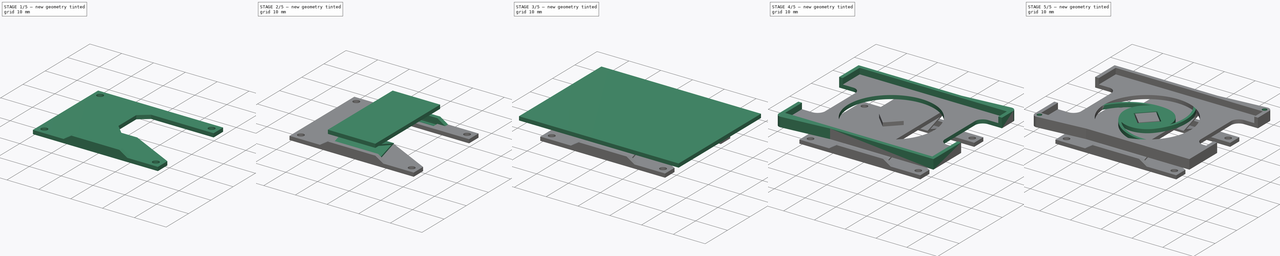
[diagram: build sequence overview — one tinted view per stage of 5, left to right]
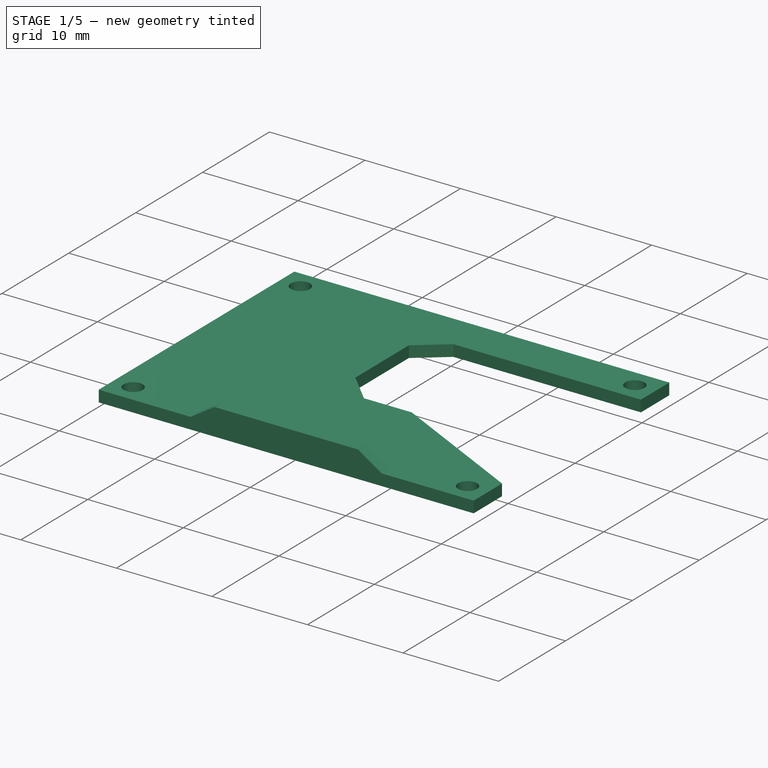
[diagram: stage 1 of 5 — iso view after this stage's code; geometry added in this stage tinted green]
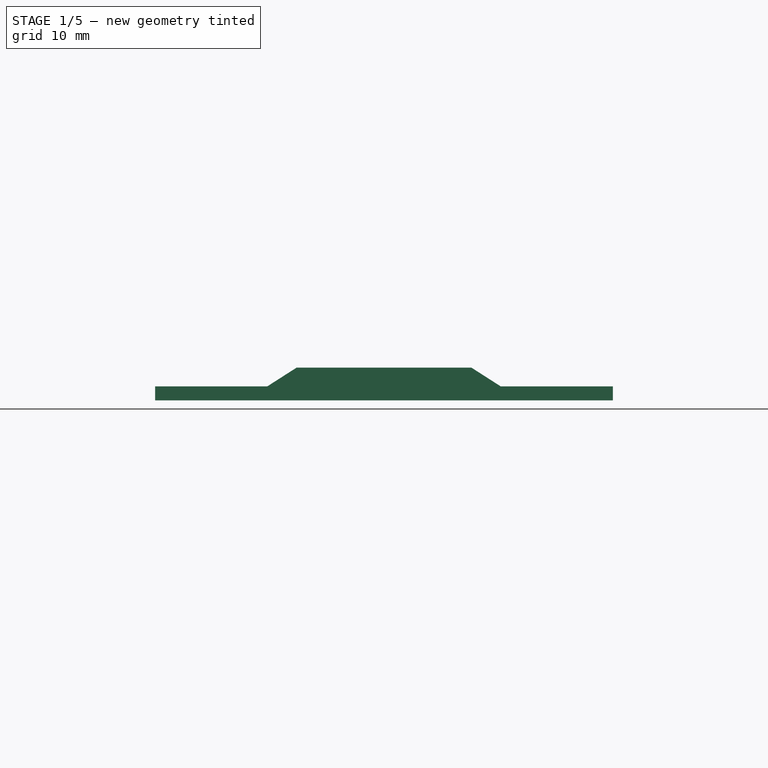
[diagram: stage 1 of 5 — front view after this stage's code; geometry added in this stage tinted green]
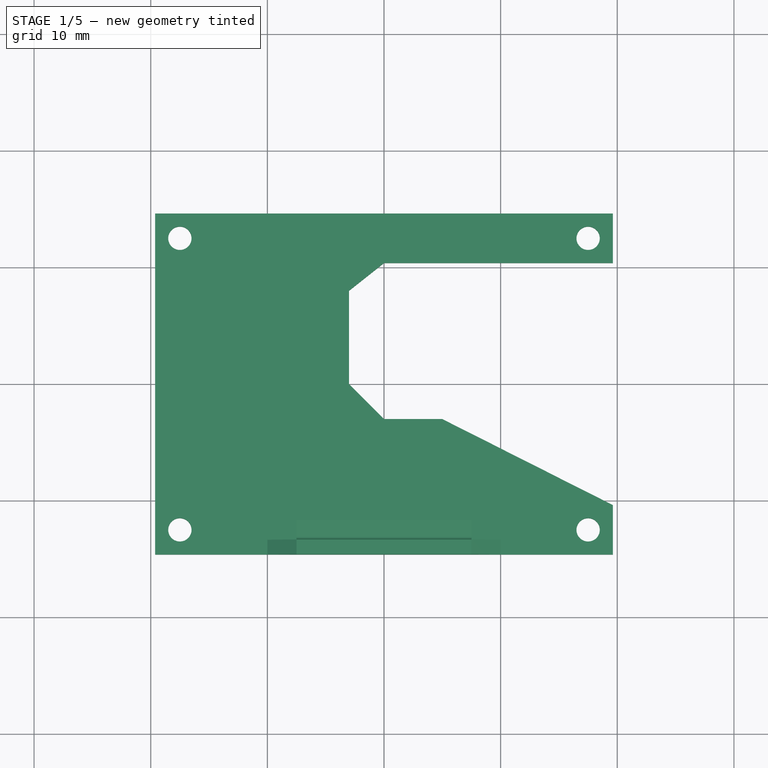
[diagram: stage 1 of 5 — top view after this stage's code; geometry added in this stage tinted green]
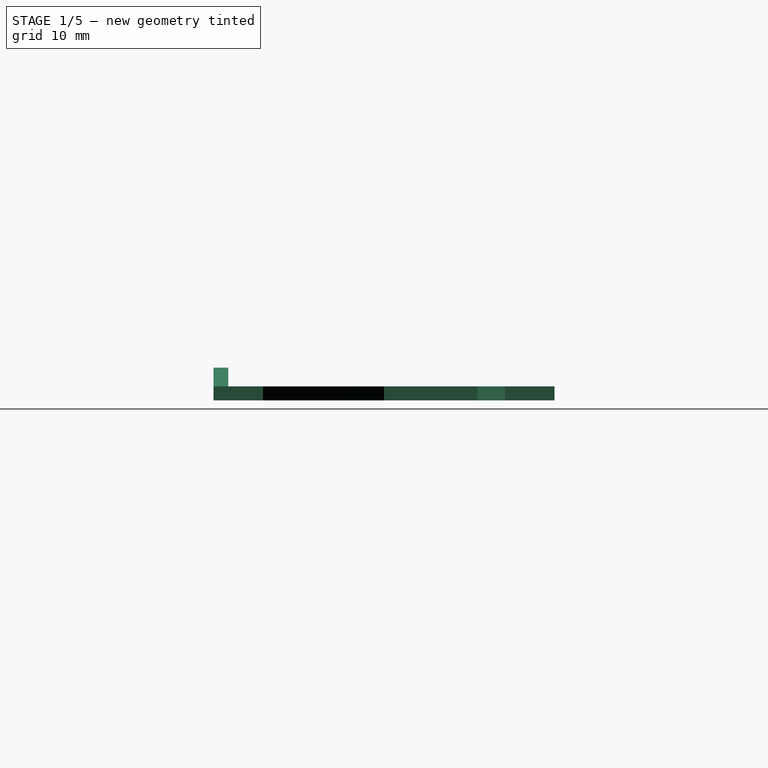
[diagram: stage 1 of 5 — right view after this stage's code; geometry added in this stage tinted green]
FCSTD DOCUMENT  (FreeCAD 0.21R33668 +26 (Git))
Label: PLASTIC-TEK1-DISPLAY-INTERFACE
License: All rights reserved
LicenseURL: https://en.wikipedia.org/wiki/All_rights_reserved
objects: Sketcher::SketchObject×15, PartDesign::Pad×8, PartDesign::Pocket×5, PartDesign::Plane×4, PartDesign::Body×3, PartDesign::Mirrored×2
note: 50 computed .brp shape members not serialized (recipe doc carries the construction recipe); baked Part::Feature solids carry a one-line shape summary decoded from their .brp

FEATURE [Sketcher::SketchObject] Sketch003
  FullyConstrained = true
  MapMode = 5
  Support = -> [XY_Plane]
  sketch-geometry (24):
    g0: Circle CenterX=-17.5 CenterY=12.5 CenterZ=0 NormalX=0 NormalY=0 NormalZ=1 AngleXU=0 Radius=1
    g1: Circle CenterX=-17.5 CenterY=-12.5 CenterZ=0 NormalX=0 NormalY=0 NormalZ=1 AngleXU=0 Radius=1
    g2: Circle CenterX=17.5 CenterY=-12.5 CenterZ=0 NormalX=0 NormalY=0 NormalZ=1 AngleXU=0 Radius=1
    g3: LineSegment StartX=-19.6213 StartY=14.6213 StartZ=0 EndX=-15.3787 EndY=14.6213 EndZ=0
    g4: LineSegment StartX=-19.6213 StartY=-14.6213 StartZ=0 EndX=19.6213 EndY=-14.6213 EndZ=0
    g5: LineSegment StartX=19.6213 StartY=-14.6213 StartZ=0 EndX=19.6213 EndY=-10.3787 EndZ=0
    g6: LineSegment StartX=-19.6213 StartY=14.6213 StartZ=0 EndX=-19.6213 EndY=-14.6213 EndZ=0
    g7: LineSegment StartX=-3 StartY=8 StartZ=0 EndX=-3 EndY=0 EndZ=0
    g8: LineSegment StartX=-2.54468e-11 StartY=-3 StartZ=0 EndX=5 EndY=-3 EndZ=0
    g9: LineSegment StartX=-19.6213 StartY=14.6213 StartZ=0 EndX=-17.5 EndY=12.5 EndZ=0
    g10: LineSegment StartX=-17.5 StartY=12.5 StartZ=0 EndX=-15.3787 EndY=14.6213 EndZ=0
    g11: LineSegment StartX=-19.6213 StartY=-14.6213 StartZ=0 EndX=-17.5 EndY=-12.5 EndZ=0
    g12: LineSegment StartX=19.6213 StartY=-14.6213 StartZ=0 EndX=17.5 EndY=-12.5 EndZ=0
    g13: LineSegment StartX=17.5 StartY=-12.5 StartZ=0 EndX=19.6213 EndY=-10.3787 EndZ=0
    g14: LineSegment StartX=5 StartY=-3 StartZ=0 EndX=19.6213 EndY=-10.3787 EndZ=0
    g15: LineSegment StartX=-15.3787 StartY=14.6213 StartZ=0 EndX=19.6213 EndY=14.6213 EndZ=0
    g16: Circle CenterX=17.5 CenterY=12.5 CenterZ=0 NormalX=0 NormalY=0 NormalZ=1 AngleXU=0 Radius=1
    g17: LineSegment StartX=19.6213 StartY=14.6213 StartZ=0 EndX=19.6213 EndY=10.3787 EndZ=0
    g18: LineSegment StartX=19.6213 StartY=14.6213 StartZ=0 EndX=17.5 EndY=12.5 EndZ=0
    g19: LineSegment StartX=17.5 StartY=12.5 StartZ=0 EndX=19.6213 EndY=10.3787 EndZ=0
    g20: LineSegment StartX=-3 StartY=0 StartZ=0 EndX=-2.54468e-11 EndY=-3 EndZ=0
    g21: Circle CenterX=0 CenterY=0 CenterZ=0 NormalX=0 NormalY=0 NormalZ=1 AngleXU=0 Radius=1
    g22: LineSegment StartX=-3 StartY=8 StartZ=0 EndX=0 EndY=10.3787 EndZ=0
    g23: LineSegment StartX=0 StartY=10.3787 StartZ=0 EndX=19.6213 EndY=10.3787 EndZ=0
  constraints (64):
    c: Equal(g0,g1)
    c: Equal(g0,g2)
    c: Diameter(g0) = 2
    c: Symmetric(g0,g1,g-1)
    c: Symmetric(g1,g2,g-2)
    c: DistanceY(g1,g0) = 25
    c: DistanceX(g1,g2) = 35
    c: Horizontal(g3)
    c: Horizontal(g4)
    c: Coincident(g5,g4)
    c: Coincident(g5,g14)
    c: Coincident(g6,g3)
    c: Coincident(g6,g4)
    c: Vertical(g6)
    c: Vertical(g5)
    c: Vertical(g7)
    c: Horizontal(g8)
    c: Coincident(g9,g3)
    c: Coincident(g9,g0)
    c: Coincident(g10,g0)
    c: Coincident(g10,g3)
    c: Coincident(g11,g4)
    c: Coincident(g11,g1)
    c: Coincident(g12,g4)
    c: Coincident(g12,g2)
    c: Coincident(g13,g2)
    c: Coincident(g13,g14)
    c: Equal(g10,g9)
    c: Equal(g9,g11)
    c: Equal(g11,g13)
    c: Equal(g13,g12)
    c: Angle(g4,g11) = 0.785398
    c: Distance(g11) = 3
    c: Coincident(g14,g8)
    c: Coincident(g15,g3)
    c: Horizontal(g15)
    c: Vertical(g16,g2)
    c: Horizontal(g16,g0)
    c: Equal(g16,g2)
    c: Coincident(g17,g15)
    c: Vertical(g17)
    c: Coincident(g18,g15)
    c: Coincident(g18,g16)
    c: Coincident(g19,g16)
    c: Coincident(g19,g17)
    c: Equal(g19,g18)
    c: Equal(g18,g12)
    c: Angle(g8,g20) = 2.35619
    c: Coincident(g7,g20)
    c: Coincident(g8,g20)
    c: DistanceY(g8,g-1) = 3
    c: PointOnObject(g7,g-1)
    c: DistanceX(g7,g-1) = 3
    c: Coincident(g21,g-1)
    c: Diameter(g21) = 2
    c: DistanceY(g21,g7) = 8
    c: DistanceX(g21,g8) = 5
    c: DistanceX(g3,g15) = 39.2426
    c: DistanceY(g6,g6) = 29.2426
    c: Coincident(g22,g7)
    c: Coincident(g23,g22)
    c: Coincident(g23,g17)
    c: Horizontal(g23)
    c: PointOnObject(g22,g-2)
FEATURE [PartDesign::Pad] Pad
  Direction = (0,0,1)
  Length = 1.2
  Length2 = 10
  Profile = -> Sketch003
  ReferenceAxis = -> Sketch003 [N_Axis]
  Reversed = true
  Type = 0
FEATURE [PartDesign::Body] Body002  label="PLASTIC-TEK1-DISPLAY-INTERFACE_bottom_part001"
  Group = -> [Sketch015,Pad011,DatumPlane003,Sketch014,Pad012,Mirrored002,Sketch018,Pad013]
  Origin = -> Origin002
  Tip = -> Pad013
FEATURE [Sketcher::SketchObject] Sketch
  FullyConstrained = true
  MapMode = 5
  Placement = pos=(0,0,0) rot=(0.57735,0.57735,0.57735;2.0944rad)
  Support = -> [YZ_Plane]
  sketch-geometry (4):
    g0: ArcOfCircle CenterX=-13.1 CenterY=-0.209228 CenterZ=0 NormalX=0 NormalY=0 NormalZ=1 AngleXU=0 Radius=0.25 StartAngle=3.14159 EndAngle=5.03153
    g1: LineSegment StartX=-13.35 StartY=-0.209228 StartZ=0 EndX=-13.35 EndY=0 EndZ=0
    g2: LineSegment StartX=-13.0216 StartY=-0.446604 StartZ=0 EndX=-11.67 EndY=0 EndZ=0
    g3: LineSegment StartX=-13.35 StartY=0 StartZ=0 EndX=-11.67 EndY=0 EndZ=0
  constraints (11):
    c: DistanceX(g0,g-1) = 13.1
    c: Diameter(g0) = 0.5
    c: PointOnObject(g1,g-1)
    c: PointOnObject(g2,g-1)
    c: Vertical(g1)
    c: Angle(g2,g-1) = 2.82245
    c: Tangent(g0,g2) = -1.5708
    c: Tangent(g0,g1) = 1.5708
    c: Coincident(g3,g1)
    c: Coincident(g3,g2)
    c: DistanceX(g3,g3) = 1.68
FEATURE [PartDesign::Plane] DatumPlane004
  AttachmentOffset = pos=(0,0,14.6213) rot=(0,0,1;0rad)
  Length = 60
  MapMode = 5
  Placement = pos=(0,-14.6213,-3.2e-15) rot=(1,0,0;1.5708rad)
  ResizeMode = 0
  Support = -> [XZ_Plane]
  Width = 60
FEATURE [Sketcher::SketchObject] Sketch019
  FullyConstrained = true
  MapMode = 5
  Placement = pos=(0,-14.6213,-3.2e-15) rot=(1,0,0;1.5708rad)
  Support = -> [DatumPlane004]
  sketch-geometry (4):
    g0: LineSegment StartX=-10 StartY=0 StartZ=0 EndX=-7.5 EndY=1.6 EndZ=0
    g1: LineSegment StartX=-7.5 StartY=1.6 StartZ=0 EndX=7.5 EndY=1.6 EndZ=0
    g2: LineSegment StartX=7.5 StartY=1.6 StartZ=0 EndX=10 EndY=-2e-16 EndZ=0
    g3: LineSegment StartX=10 StartY=-2e-16 StartZ=0 EndX=-10 EndY=0 EndZ=0
  constraints (10):
    c: PointOnObject(g0,g-1)
    c: Coincident(g1,g0)
    c: Coincident(g2,g1)
    c: Coincident(g3,g2)
    c: Coincident(g3,g0)
    c: Symmetric(g1,g0,g-2)
    c: Symmetric(g2,g0,g-2)
    c: DistanceX(g3,g3) = 20
    c: DistanceX(g1,g1) = 15
    c: DistanceY(g2,g1) = 1.6
FEATURE [PartDesign::Pad] Pad014
  BaseFeature = -> Pad
  Direction = (0,-1,-2e-16)
  Length = 1.2713
  Length2 = 10
  Profile = -> Sketch019
  ReferenceAxis = -> Sketch019 [N_Axis]
  Reversed = true
  Type = 0
FEATURE [PartDesign::Pocket] Pocket004
  BaseFeature = -> Pad014
  Direction = (-1,2e-16,-3e-16)
  Length = 15
  Length2 = 5
  Midplane = true
  Profile = -> Sketch
  ReferenceAxis = -> Sketch [N_Axis]
  Type = 0
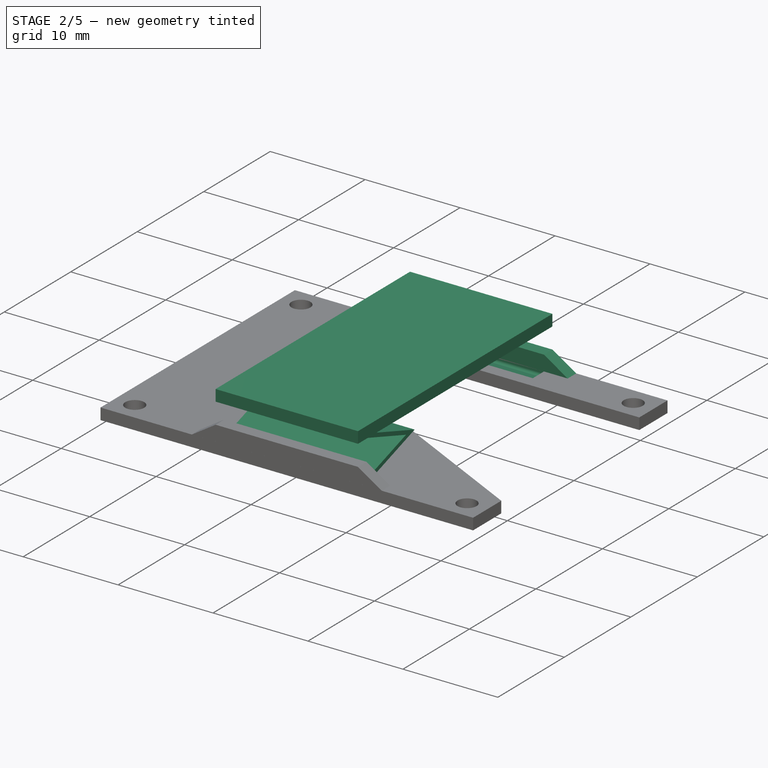
[diagram: stage 2 of 5 — iso view after this stage's code; geometry added in this stage tinted green]
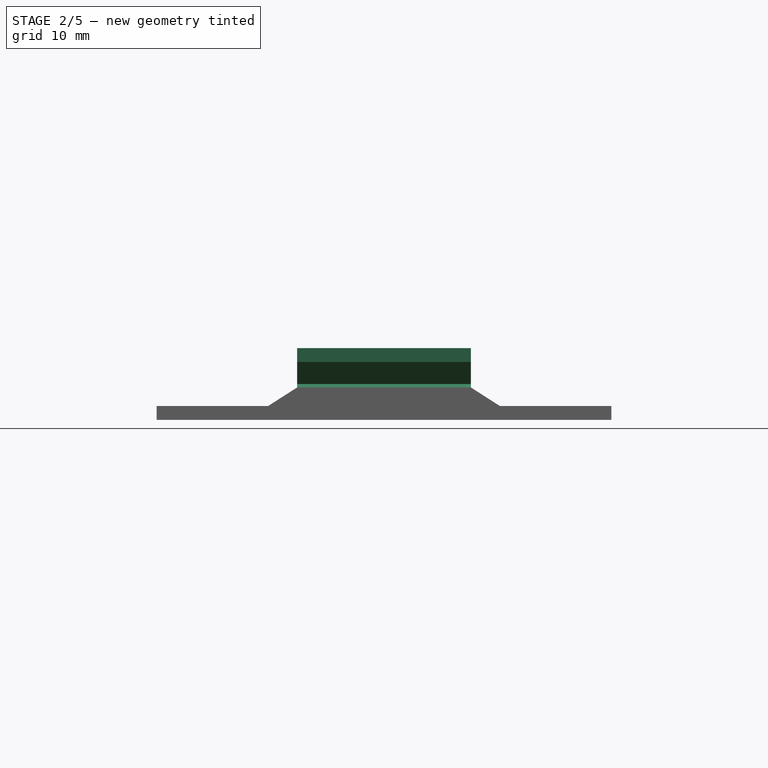
[diagram: stage 2 of 5 — front view after this stage's code; geometry added in this stage tinted green]
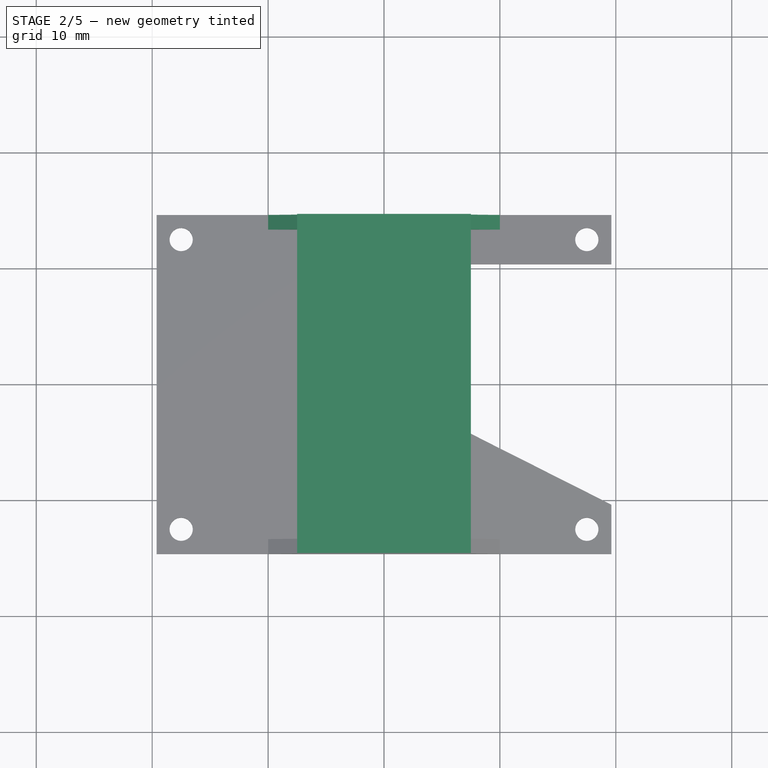
[diagram: stage 2 of 5 — top view after this stage's code; geometry added in this stage tinted green]
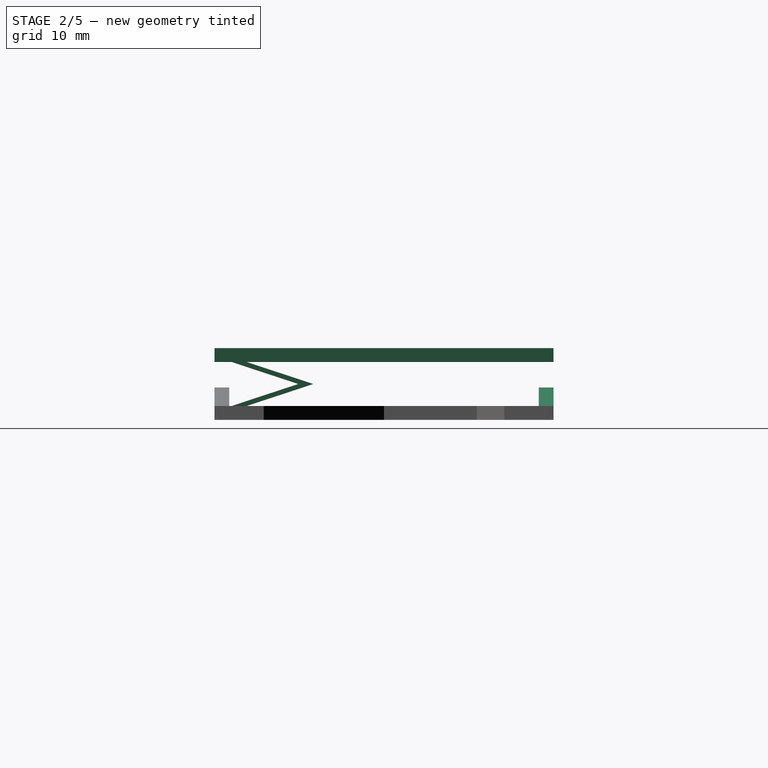
[diagram: stage 2 of 5 — right view after this stage's code; geometry added in this stage tinted green]
FEATURE [PartDesign::Plane] DatumPlane003
  AttachmentOffset = pos=(0,0,3.8) rot=(0,0,1;0rad)
  Length = 60
  MapMode = 5
  Placement = pos=(0,0,3.8) rot=(0,0,1;0rad)
  ResizeMode = 0
  Support = -> [XY_Plane002]
  Width = 60
FEATURE [Sketcher::SketchObject] Sketch014
  FullyConstrained = true
  MapMode = 5
  Placement = pos=(0,0,3.8) rot=(0,0,1;0rad)
  Support = -> [DatumPlane003]
  sketch-geometry (5):
    g0: LineSegment StartX=-7.5 StartY=-14.6213 StartZ=0 EndX=-7.5 EndY=14.6213 EndZ=0
    g1: LineSegment StartX=-7.5 StartY=14.6213 StartZ=0 EndX=7.5 EndY=14.6213 EndZ=0
    g2: LineSegment StartX=7.5 StartY=14.6213 StartZ=0 EndX=7.5 EndY=-14.6213 EndZ=0
    g3: LineSegment StartX=7.5 StartY=-14.6213 StartZ=0 EndX=-7.5 EndY=-14.6213 EndZ=0
    g4: GeomPoint X=0 Y=0 Z=0
  constraints (12):
    c: Coincident(g0,g1)
    c: Coincident(g1,g2)
    c: Coincident(g2,g3)
    c: Coincident(g3,g0)
    c: Horizontal(g1)
    c: Horizontal(g3)
    c: Vertical(g0)
    c: Vertical(g2)
    c: Symmetric(g1,g0,g4)
    c: Coincident(g4,g-1)
    c: DistanceX(g1,g1) = 15
    c: DistanceY(g0,g0) = 29.2426
FEATURE [Sketcher::SketchObject] Sketch015
  FullyConstrained = false
  MapMode = 5
  Placement = pos=(0,0,0) rot=(0.57735,0.57735,0.57735;2.0944rad)
  Support = -> [YZ_Plane002]
  sketch-geometry (19):
    g0: LineSegment StartX=-11.85 StartY=0 StartZ=0 EndX=-11.85 EndY=0.4 EndZ=0
    g1: ArcOfCircle CenterX=-7.6 CenterY=1.9 CenterZ=0 NormalX=0 NormalY=0 NormalZ=1 AngleXU=0 Radius=1.5 StartAngle=4.71239 EndAngle=7.85398
    g2: LineSegment StartX=-11.85 StartY=0.4 StartZ=0 EndX=-7.6 EndY=0.4 EndZ=0
    g3: LineSegment StartX=-7.6 StartY=3.4 StartZ=0 EndX=-11.85 EndY=3.4 EndZ=0
    g4: ArcOfCircle CenterX=-7.6 CenterY=1.9 CenterZ=0 NormalX=0 NormalY=0 NormalZ=1 AngleXU=0 Radius=0.7 StartAngle=4.71239 EndAngle=7.85398
    g5: LineSegment StartX=-6.9 StartY=1.9 StartZ=0 EndX=-6.1 EndY=1.9 EndZ=0
    g6: LineSegment StartX=-7.6 StartY=2.6 StartZ=0 EndX=-13.15 EndY=2.6 EndZ=0
    g7: LineSegment StartX=-7.6 StartY=1.2 StartZ=0 EndX=-13.15 EndY=1.2 EndZ=0
    g8: LineSegment StartX=-13.15 StartY=0 StartZ=0 EndX=-13.15 EndY=1.2 EndZ=0
    g9: LineSegment StartX=-13.15 StartY=3.8 StartZ=0 EndX=-13.15 EndY=2.6 EndZ=0
    g10: GeomPoint X=-12.5 Y=0 Z=0
    g11: LineSegment StartX=-11.85 StartY=3.4 StartZ=0 EndX=-11.85 EndY=3.8 EndZ=0
    g12: LineSegment StartX=-11.85 StartY=3.8 StartZ=0 EndX=-13.15 EndY=3.8 EndZ=0
    g13: LineSegment StartX=-13.022 StartY=-0.387279 StartZ=0 EndX=-6.1 EndY=1.9 EndZ=0
    g14: LineSegment StartX=-6.1 StartY=1.9 StartZ=0 EndX=-11.85 EndY=3.8 EndZ=0
    g15: LineSegment StartX=-13.15 StartY=3.8 StartZ=0 EndX=-7.4 EndY=1.9 EndZ=0
    g16: LineSegment StartX=-7.4 StartY=1.9 StartZ=0 EndX=-13.15 EndY=0 EndZ=0
    g17: LineSegment StartX=-9.88354 StartY=2.72065 StartZ=0 EndX=-9.75557 EndY=3.10793 EndZ=0
    g18: ArcOfCircle CenterX=-13.086 CenterY=-0.19364 CenterZ=0 NormalX=0 NormalY=0 NormalZ=1 AngleXU=0 Radius=0.203937 StartAngle=1.88994 EndAngle=5.03153
  constraints (58):
    c: PointOnObject(g8,g-1)
    c: PointOnObject(g0,g-1)
    c: Vertical(g0)
    c: Tangent(g2,g1) = -1.5708
    c: Tangent(g1,g3) = -1.5708
    c: Horizontal(g2)
    c: Horizontal(g1,g4)
    c: DistanceY(g4,g1) = 0.8
    c: PointOnObject(g5,g4)
    c: PointOnObject(g5,g1)
    c: Horizontal(g5)
    c: Horizontal(g5,g1)
    c: DistanceX(g5,g5) = 0.8
    c: Horizontal(g6)
    c: Horizontal(g7)
    c: Vertical(g8)
    c: Vertical(g9)
    c: Coincident(g6,g9)
    c: Coincident(g7,g8)
    c: Coincident(g2,g0)
    c: Horizontal(g3)
    c: DistanceY(g0,g0) = 0.4
    c: Tangent(g6,g4) = -1.5708
    c: Tangent(g7,g4) = 1.5708
    c: Symmetric(g8,g0,g10)
    c: DistanceX(g10,g-1) = 12.5
    c: Vertical(g0,g3)
    c: Coincident(g11,g3)
    c: Vertical(g11)
    c: Equal(g11,g0)
    c: DistanceX(g10,g5) = 6.4
    c: Coincident(g12,g11)
    c: Horizontal(g12)
    c: Coincident(g9,g12)
    c: Vertical(g6,g7)
    c: DistanceX(g12,g12) = 1.3
    c: DistanceY(g0,g3) = 3
    c: DistanceY(g8,g9) = 3.8
    c: Coincident(g13,g5)
    c: Coincident(g14,g13)
    c: Coincident(g14,g12)
    c: Coincident(g15,g12)
    c: Coincident(g16,g15)
    c: Horizontal(g13,g15)
    c: Parallel(g15,g14)
    c: PointOnObject(g17,g14)
    c: Perpendicular(g14,g17)
    c: Distance(g17) = 0.407875
    c: PointOnObject(g17,g15)
    c: Angle(g-1,g13) = 0.31914
    c: DistanceX(g8,g-1) = 13.15
    c: Tangent(g16,g18) = -1.5708
    c: Parallel(g13,g16)
    c: Angle(g12,g14) = 2.82245
    c: Vertical(g16,g12)
    c: Tangent(g18,g13) = -1.5708
    c: Coincident(g18,g8)
    c: DistanceY(g18,g-1) = 0.19364
FEATURE [PartDesign::Pad] Pad011
  Direction = (1,-2e-16,3e-16)
  Length = 15
  Length2 = 10
  Midplane = true
  Placement = pos=(0,0,0) rot=(0.57735,0.57735,0.57735;2.0944rad)
  Profile = -> Sketch015
  ReferenceAxis = -> Sketch015 [N_Axis]
  Type = 0
FEATURE [PartDesign::Pad] Pad012
  BaseFeature = -> Pad011
  Direction = (0,0,1)
  Length = 1.2
  Length2 = 10
  Placement = pos=(0,0,0) rot=(0.57735,0.57735,0.57735;2.0944rad)
  Profile = -> Sketch014
  ReferenceAxis = -> Sketch014 [N_Axis]
  Type = 0
FEATURE [PartDesign::Mirrored] Mirrored
  BaseFeature = -> Pocket004
  MirrorPlane = -> XZ_Plane
  Originals = -> [Pad014,Pocket004]
FEATURE [PartDesign::Body] Body  label="PLASTIC-TEK1-DISPLAY-INTERFACE_bottom_part"
  Group = -> [Sketch003,Pad,Sketch,DatumPlane004,Sketch019,Pad014,Pocket004,Mirrored]
  Origin = -> Origin
  Tip = -> Mirrored
FEATURE [Sketcher::SketchObject] Sketch020
  FullyConstrained = true
  MapMode = 5
  Placement = pos=(0,0,5) rot=(0,0,1;0rad)
  Support = -> [DatumPlane002]
  sketch-geometry (1):
    g0: Circle CenterX=0 CenterY=0 CenterZ=0 NormalX=0 NormalY=0 NormalZ=1 AngleXU=0 Radius=6
  constraints (2):
    c: Coincident(g0,g-1)
    c: Diameter(g0) = 12
FEATURE [PartDesign::Body] Body001  label="PLASTIC-TEK1-DISPLAY-INTERFACE_top_part"
  Group = -> [DatumPlane002,Sketch005,Sketch007,Pad005,Sketch008,Pad006,Sketch009,Pocket001,Sketch010,Sketch004,Pocket002,Pad008,Sketch011,Pocket003,DatumPlane,Sketch013,Pocket,Sketch020]
  Origin = -> Origin001
  Tip = -> Pocket
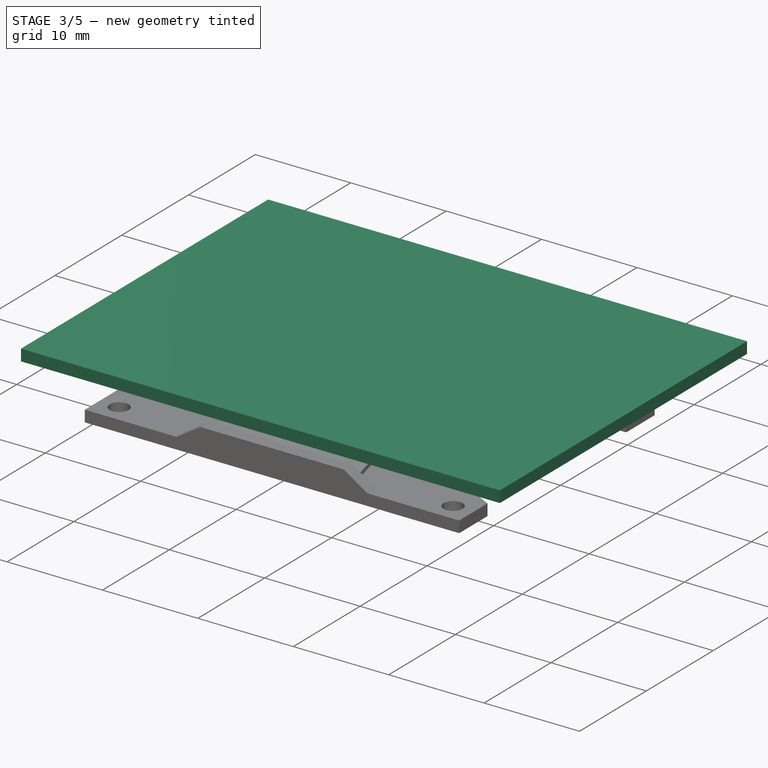
[diagram: stage 3 of 5 — iso view after this stage's code; geometry added in this stage tinted green]
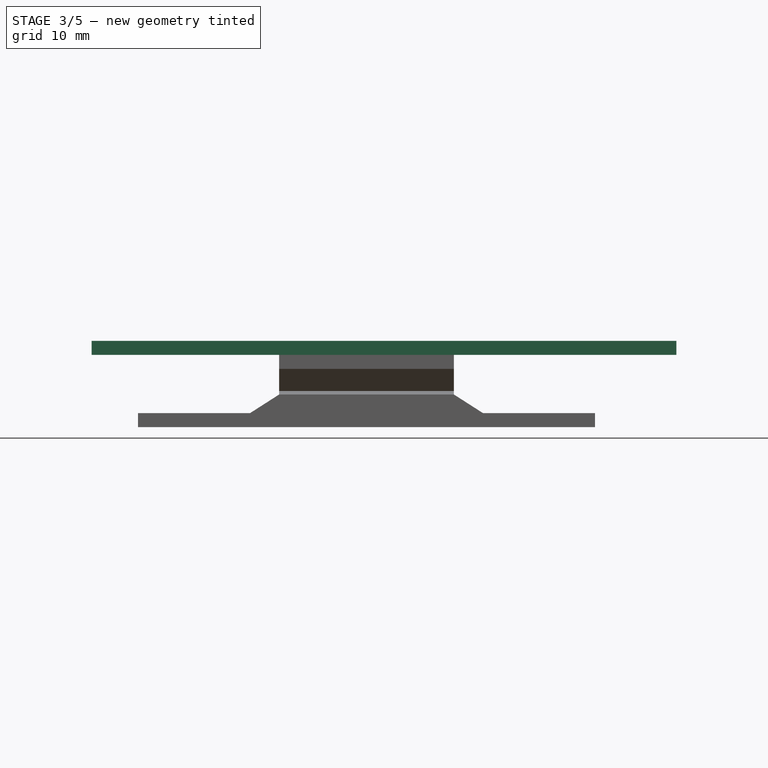
[diagram: stage 3 of 5 — front view after this stage's code; geometry added in this stage tinted green]
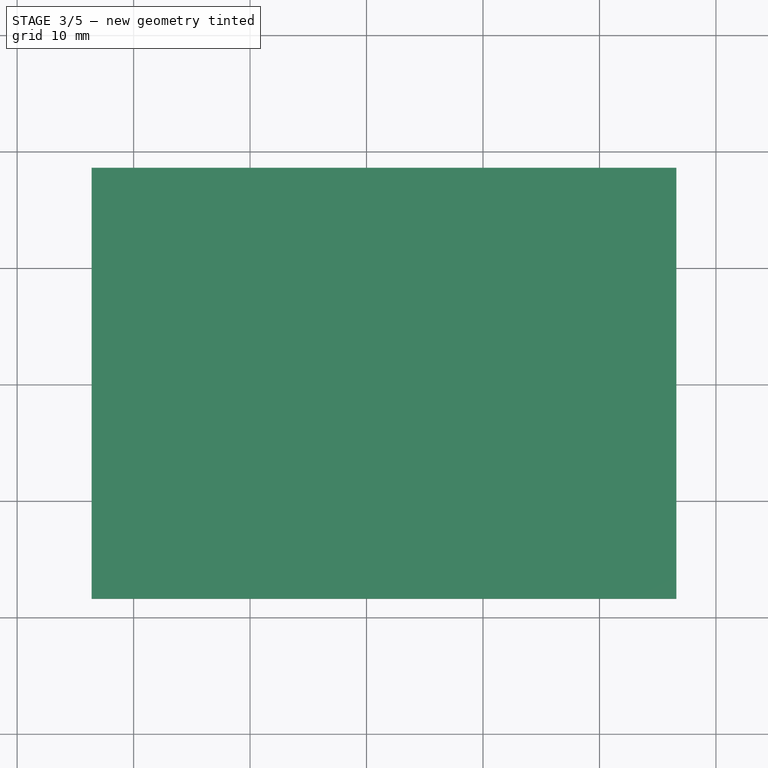
[diagram: stage 3 of 5 — top view after this stage's code; geometry added in this stage tinted green]
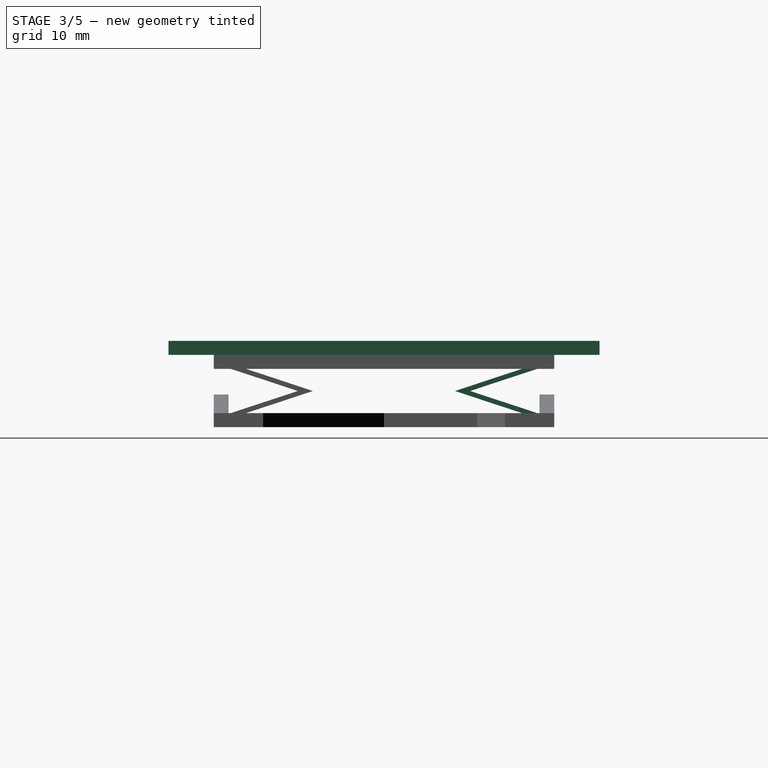
[diagram: stage 3 of 5 — right view after this stage's code; geometry added in this stage tinted green]
FEATURE [PartDesign::Plane] DatumPlane002
  AttachmentOffset = pos=(0,0,5) rot=(0,0,1;0rad)
  Length = 61.7587
  MapMode = 5
  Placement = pos=(0,0,5) rot=(0,0,1;0rad)
  ResizeMode = 0
  Support = -> [XY_Plane001]
  Width = 60.1587
FEATURE [Sketcher::SketchObject] Sketch004
  FullyConstrained = false
  MapMode = 5
  Placement = pos=(0,0,5) rot=(0,0,1;0rad)
  Support = -> [DatumPlane002]
  sketch-geometry (21):
    g0: ArcOfCircle CenterX=0 CenterY=0 CenterZ=0 NormalX=0 NormalY=0 NormalZ=1 AngleXU=0 Radius=7.5 StartAngle=2.0524 EndAngle=3.49066
    g1: ArcOfCircle CenterX=7.04769 CenterY=2.56515 CenterZ=0 NormalX=0 NormalY=0 NormalZ=1 AngleXU=0 Radius=15 StartAngle=3.49066 EndAngle=4.67286
    g2: ArcOfCircle CenterX=7.04769 CenterY=2.56515 CenterZ=0 NormalX=0 NormalY=0 NormalZ=1 AngleXU=0 Radius=14.2 StartAngle=3.81873 EndAngle=4.76664
    g3: ArcOfCircle CenterX=-1.30236 CenterY=-7.38606 CenterZ=0 NormalX=0 NormalY=0 NormalZ=1 AngleXU=0 Radius=15 StartAngle=1.39626 EndAngle=2.57846
    g4: ArcOfCircle CenterX=-1.30236 CenterY=-7.38606 CenterZ=0 NormalX=0 NormalY=0 NormalZ=1 AngleXU=0 Radius=14.2 StartAngle=1.72433 EndAngle=2.67224
    g5: LineSegment StartX=-7.04769 StartY=-2.56515 StartZ=0 EndX=0 EndY=0 EndZ=0
    g6: ArcOfCircle CenterX=-5.74533 CenterY=4.82091 CenterZ=0 NormalX=0 NormalY=0 NormalZ=1 AngleXU=0 Radius=15 StartAngle=5.58505 EndAngle=6.76725
    g7: ArcOfCircle CenterX=-5.74533 CenterY=4.82091 CenterZ=0 NormalX=0 NormalY=0 NormalZ=1 AngleXU=0 Radius=14.2 StartAngle=5.91312 EndAngle=6.86103
    g8: LineSegment StartX=0 StartY=0 StartZ=0 EndX=1.30236 EndY=7.38606 EndZ=0
    g9: LineSegment StartX=0 StartY=0 StartZ=0 EndX=5.74533 EndY=-4.82091 EndZ=0
    g10: ArcOfCircle CenterX=0 CenterY=0 CenterZ=0 NormalX=0 NormalY=0 NormalZ=1 AngleXU=0 Radius=14 StartAngle=1.00279 EndAngle=1.11606
    g11: Circle CenterX=7.04769 CenterY=2.56515 CenterZ=0 NormalX=0 NormalY=0 NormalZ=1 AngleXU=0 Radius=14.6
    g12: Circle CenterX=-5.74533 CenterY=4.82091 CenterZ=0 NormalX=0 NormalY=0 NormalZ=1 AngleXU=0 Radius=14.6
    g13: Circle CenterX=-1.30236 CenterY=-7.38606 CenterZ=0 NormalX=0 NormalY=0 NormalZ=1 AngleXU=0 Radius=14.6
    g14: ArcOfCircle CenterX=0 CenterY=0 CenterZ=0 NormalX=0 NormalY=0 NormalZ=1 AngleXU=0 Radius=7.5 StartAngle=4.14679 EndAngle=5.58505
    g15: ArcOfCircle CenterX=0 CenterY=0 CenterZ=0 NormalX=0 NormalY=0 NormalZ=1 AngleXU=0 Radius=7.5 StartAngle=6.24119 EndAngle=7.67945
    g16: ArcOfCircle CenterX=0 CenterY=0 CenterZ=0 NormalX=0 NormalY=0 NormalZ=1 AngleXU=0 Radius=14 StartAngle=3.09719 EndAngle=3.21046
    g17: ArcOfCircle CenterX=0 CenterY=0 CenterZ=0 NormalX=0 NormalY=0 NormalZ=1 AngleXU=0 Radius=14 StartAngle=5.19158 EndAngle=5.30485
    g18: ArcOfCircle CenterX=0 CenterY=0 CenterZ=0 NormalX=0 NormalY=0 NormalZ=1 AngleXU=0 Radius=7.5 StartAngle=3.49066 EndAngle=4.14679
    g19: ArcOfCircle CenterX=0 CenterY=0 CenterZ=0 NormalX=0 NormalY=0 NormalZ=1 AngleXU=0 Radius=7.5 StartAngle=1.39626 EndAngle=2.0524
    g20: ArcOfCircle CenterX=0 CenterY=0 CenterZ=0 NormalX=0 NormalY=0 NormalZ=1 AngleXU=0 Radius=7.5 StartAngle=5.58505 EndAngle=6.24119
  constraints (60):
    c: Coincident(g0,g-1)
    c: Diameter(g0) = 15
    c: Coincident(g2,g1)
    c: Diameter(g1) = 30
    c: Diameter(g2) = 28.4
    c: Equal(g3,g1)
    c: PointOnObject(g1,g0)
    c: Coincident(g4,g3)
    c: Equal(g4,g2)
    c: Coincident(g5,g1)
    c: Coincident(g5,g0)
    c: Equal(g6,g1)
    c: Coincident(g7,g6)
    c: Equal(g7,g2)
    c: Coincident(g8,g0)
    c: Coincident(g8,g3)
    c: Angle(g8,g5) = 2.0944
    c: Tangent(g6,g0) = -1.5708
    c: Coincident(g9,g0)
    c: Coincident(g9,g6)
    c: Angle(g9,g8) = 2.0944
    c: Coincident(g10,g0)
    c: Diameter(g10) = 28
    c: Coincident(g11,g1)
    c: Diameter(g11) = 29.2
    c: Coincident(g12,g6)
    c: Equal(g12,g11)
    c: Coincident(g13,g3)
    c: Equal(g13,g11)
    c: Coincident(g0,g4)
    c: Equal(g0,g14)
    c: Coincident(g14,g2)
    c: Coincident(g0,g14)
    c: Tangent(g0,g1) = -1.5708
    c: Equal(g14,g15)
    c: PointOnObject(g14,g6)
    c: Coincident(g14,g15)
    c: Tangent(g15,g3) = -1.5708
    c: Angle(g8,g-2) = 0.174533
    c: PointOnObject(g1,g10)
    c: PointOnObject(g2,g10)
    c: PointOnObject(g4,g10)
    c: Coincident(g10,g6)
    c: Equal(g10,g16)
    c: Coincident(g10,g7)
    c: Coincident(g10,g16)
    c: Equal(g16,g17)
    c: PointOnObject(g16,g4)
    c: Coincident(g16,g17)
    c: PointOnObject(g17,g1)
    c: PointOnObject(g17,g2)
    c: Coincident(g3,g16)
    c: Coincident(g7,g15)
    c: Coincident(g18,g10)
    c: Coincident(g19,g4)
    c: PointOnObject(g20,g7)
    c: Coincident(g18,g19)
    c: Equal(g18,g20)
    c: Coincident(g18,g20)
    c: Coincident(g18,g2)
FEATURE [Sketcher::SketchObject] Sketch005
  FullyConstrained = true
  MapMode = 5
  Placement = pos=(0,0,5) rot=(0,0,1;0rad)
  Support = -> [DatumPlane002]
  sketch-geometry (1):
    g0: Circle CenterX=0 CenterY=0 CenterZ=0 NormalX=0 NormalY=0 NormalZ=1 AngleXU=0 Radius=14
  constraints (2):
    c: Coincident(g0,g-1)
    c: Diameter(g0) = 28
FEATURE [Sketcher::SketchObject] Sketch007
  FullyConstrained = true
  MapMode = 5
  Placement = pos=(0,0,5) rot=(0,0,1;0rad)
  Support = -> [DatumPlane002]
  sketch-geometry (10):
    g0: LineSegment StartX=-23.6 StartY=-18.5 StartZ=0 EndX=-23.6 EndY=18.5 EndZ=0
    g1: LineSegment StartX=-23.6 StartY=18.5 StartZ=0 EndX=26.6 EndY=18.5 EndZ=0
    g2: LineSegment StartX=26.6 StartY=18.5 StartZ=0 EndX=26.6 EndY=-18.5 EndZ=0
    g3: LineSegment StartX=26.6 StartY=-18.5 StartZ=0 EndX=-23.6 EndY=-18.5 EndZ=0
    g4: GeomPoint X=1.5 Y=0 Z=0
    g5: LineSegment StartX=-20.4 StartY=-15.3 StartZ=0 EndX=-20.4 EndY=15.3 EndZ=0
    g6: LineSegment StartX=-20.4 StartY=15.3 StartZ=0 EndX=20.4 EndY=15.3 EndZ=0
    g7: LineSegment StartX=20.4 StartY=15.3 StartZ=0 EndX=20.4 EndY=-15.3 EndZ=0
    g8: LineSegment StartX=20.4 StartY=-15.3 StartZ=0 EndX=-20.4 EndY=-15.3 EndZ=0
    g9: GeomPoint X=0 Y=0 Z=0
  constraints (25):
    c: Coincident(g0,g1)
    c: Coincident(g1,g2)
    c: Coincident(g2,g3)
    c: Coincident(g3,g0)
    c: Horizontal(g1)
    c: Horizontal(g3)
    c: Vertical(g0)
    c: Vertical(g2)
    c: Symmetric(g1,g0,g4)
    c: PointOnObject(g4,g-1)
    c: DistanceX(g1,g1) = 50.2
    c: DistanceY(g0,g0) = 37
    c: Coincident(g5,g6)
    c: Coincident(g6,g7)
    c: Coincident(g7,g8)
    c: Coincident(g8,g5)
    c: Horizontal(g6)
    c: Horizontal(g8)
    c: Vertical(g5)
    c: Vertical(g7)
    c: Symmetric(g6,g5,g9)
    c: DistanceX(g6,g6) = 40.8
    c: DistanceY(g7,g7) = 30.6
    c: Coincident(g9,g-1)
    c: DistanceX(g0,g9) = 23.6
FEATURE [PartDesign::Pad] Pad005
  Direction = (0,0,1)
  Length = 1.2
  Length2 = 10
  Placement = pos=(0,0,5) rot=(0,0,1;0rad)
  Profile = -> Sketch007
  ReferenceAxis = -> Sketch007 [N_Axis]
  Type = 0
FEATURE [PartDesign::Mirrored] Mirrored002
  BaseFeature = -> Pad012
  MirrorPlane = -> Sketch015 [V_Axis]
  Originals = -> [Pad011]
  Placement = pos=(0,0,0) rot=(0.57735,0.57735,0.57735;2.0944rad)
FEATURE [Sketcher::SketchObject] Sketch018
  FullyConstrained = true
  MapMode = 5
  Placement = pos=(0,0,5) rot=(0,0,1;0rad)
  sketch-geometry (5):
    g0: LineSegment StartX=4 StartY=-4e-16 StartZ=0 EndX=4e-16 EndY=4 EndZ=0
    g1: LineSegment StartX=4e-16 StartY=4 StartZ=0 EndX=-4 EndY=4e-16 EndZ=0
    g2: LineSegment StartX=-4 StartY=4e-16 StartZ=0 EndX=0 EndY=-4 EndZ=0
    g3: LineSegment StartX=0 StartY=-4 StartZ=0 EndX=4 EndY=-4e-16 EndZ=0
    g4: Circle CenterX=0 CenterY=0 CenterZ=0 NormalX=0 NormalY=0 NormalZ=1 AngleXU=0 Radius=4
  constraints (14):
    c: Coincident(g0,g1)
    c: Coincident(g1,g2)
    c: Coincident(g2,g3)
    c: Coincident(g3,g0)
    c: Equal(g0,g1)
    c: Equal(g0,g2)
    c: Equal(g0,g3)
    c: PointOnObject(g0,g4)
    c: PointOnObject(g1,g4)
    c: PointOnObject(g2,g4)
    c: PointOnObject(g3,g4)
    c: Coincident(g4,g-1)
    c: PointOnObject(g0,g-1)
    c: Diameter(g4) = 8
FEATURE [PartDesign::Pad] Pad013
  BaseFeature = -> Mirrored002
  Direction = (0,0,1)
  Length = 1.2
  Length2 = 10
  Placement = pos=(0,0,0) rot=(0.57735,0.57735,0.57735;2.0944rad)
  Profile = -> Sketch018
  ReferenceAxis = -> Sketch018 [N_Axis]
  Type = 0
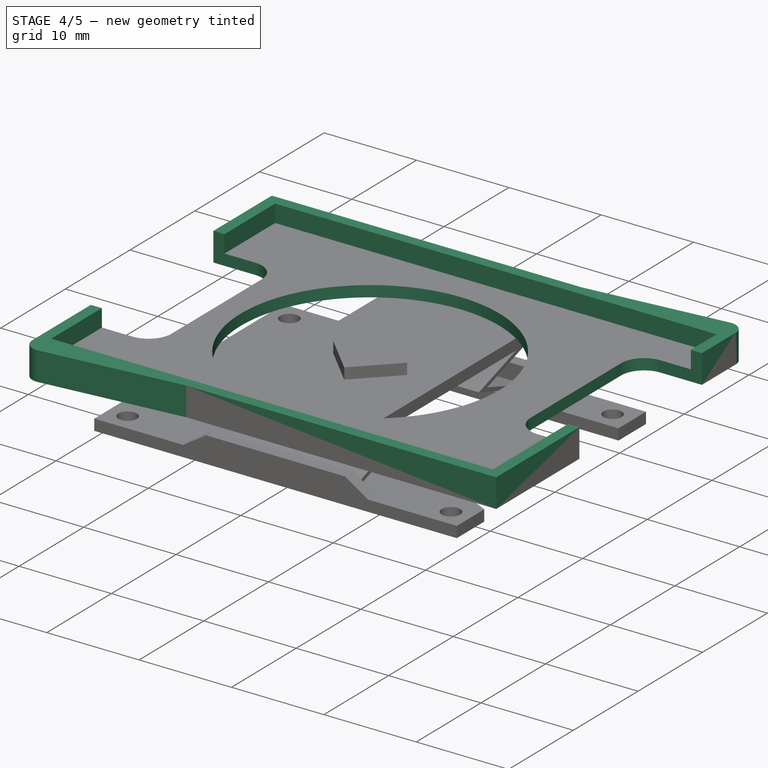
[diagram: stage 4 of 5 — iso view after this stage's code; geometry added in this stage tinted green]
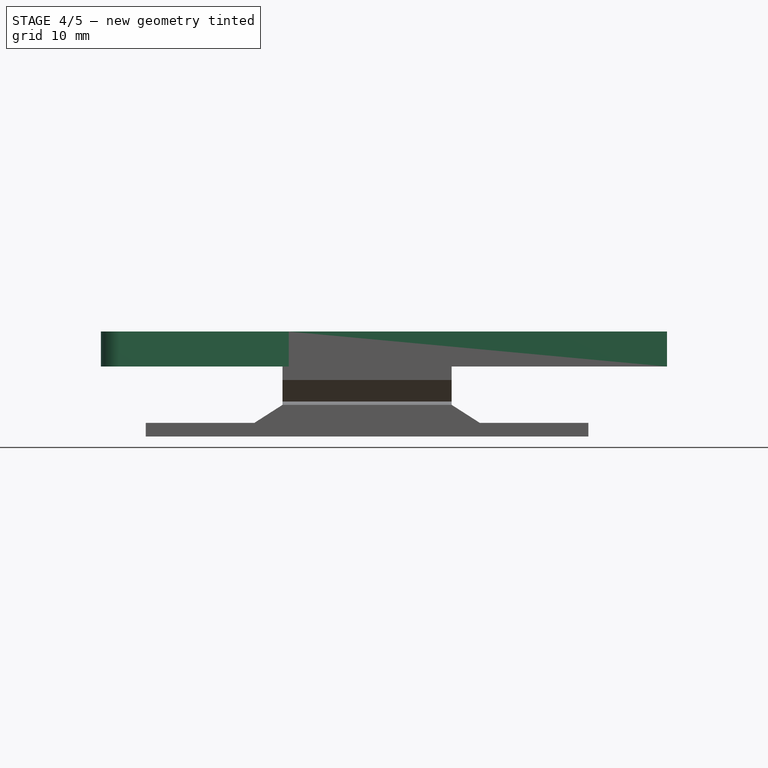
[diagram: stage 4 of 5 — front view after this stage's code; geometry added in this stage tinted green]
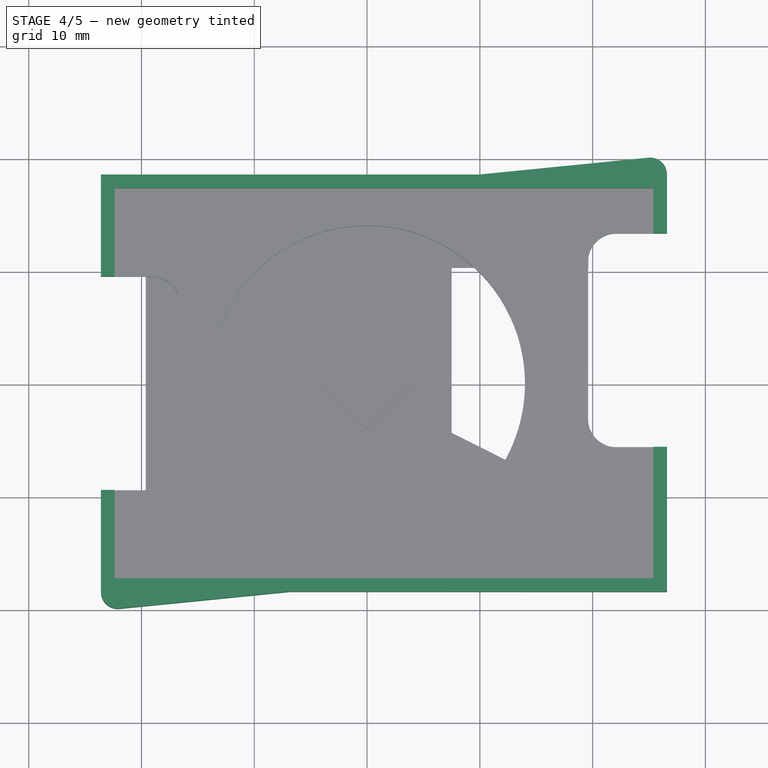
[diagram: stage 4 of 5 — top view after this stage's code; geometry added in this stage tinted green]
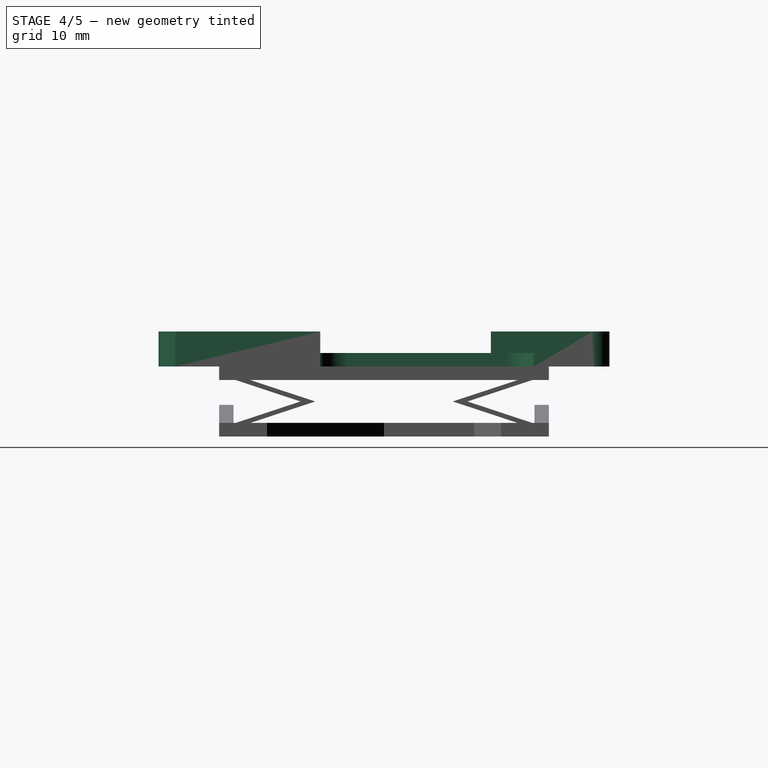
[diagram: stage 4 of 5 — right view after this stage's code; geometry added in this stage tinted green]
FEATURE [Sketcher::SketchObject] Sketch008
  FullyConstrained = true
  MapMode = 5
  Placement = pos=(0,0,5) rot=(0,0,1;0rad)
  Support = -> [DatumPlane002]
  sketch-geometry (15):
    g0: LineSegment StartX=-22.4 StartY=-17.3 StartZ=0 EndX=-22.4 EndY=17.3 EndZ=0
    g1: LineSegment StartX=-22.4 StartY=17.3 StartZ=0 EndX=25.4 EndY=17.3 EndZ=0
    g2: LineSegment StartX=25.4 StartY=17.3 StartZ=0 EndX=25.4 EndY=-17.3 EndZ=0
    g3: LineSegment StartX=25.4 StartY=-17.3 StartZ=0 EndX=-22.4 EndY=-17.3 EndZ=0
    g4: GeomPoint X=1.5 Y=0 Z=0
    g5: LineSegment StartX=-23.6 StartY=-18.5 StartZ=0 EndX=-23.6 EndY=18.5 EndZ=0
    g6: LineSegment StartX=-23.6 StartY=18.5 StartZ=0 EndX=9.95147 EndY=18.5 EndZ=0
    g7: LineSegment StartX=26.6 StartY=18.5 StartZ=0 EndX=26.6 EndY=-18.5 EndZ=0
    g8: LineSegment StartX=26.6 StartY=-18.5 StartZ=0 EndX=-6.95147 EndY=-18.5 EndZ=0
    g9: GeomPoint X=1.5 Y=0 Z=0
    g10: ArcOfCircle CenterX=-22.1 CenterY=-18.5 CenterZ=0 NormalX=0 NormalY=0 NormalZ=1 AngleXU=0 Radius=1.5 StartAngle=3.14159 EndAngle=4.81157
    g11: LineSegment StartX=-21.9515 StartY=-19.9926 StartZ=0 EndX=-6.95147 EndY=-18.5 EndZ=0
    g12: Circle CenterX=-22.1 CenterY=-18.5 CenterZ=0 NormalX=0 NormalY=0 NormalZ=1 AngleXU=0 Radius=0.75
    g13: LineSegment StartX=24.9515 StartY=19.9926 StartZ=0 EndX=9.95147 EndY=18.5 EndZ=0
    g14: ArcOfCircle CenterX=25.1 CenterY=18.5 CenterZ=0 NormalX=0 NormalY=0 NormalZ=1 AngleXU=0 Radius=1.5 StartAngle=1.24834e-07 EndAngle=1.66998
  constraints (39):
    c: Coincident(g0,g1)
    c: Coincident(g1,g2)
    c: Coincident(g2,g3)
    c: Coincident(g3,g0)
    c: Horizontal(g1)
    c: Horizontal(g3)
    c: Vertical(g0)
    c: Vertical(g2)
    c: Symmetric(g1,g0,g4)
    c: PointOnObject(g4,g-1)
    c: DistanceX(g0,g-1) = 22.4
    c: DistanceY(g0,g0) = 34.6
    c: DistanceX(g1,g1) = 47.8
    c: Coincident(g5,g6)
    c: Coincident(g7,g8)
    c: Horizontal(g6)
    c: Horizontal(g8)
    c: Vertical(g5)
    c: Coincident(g9,g4)
    c: DistanceX(g5,g0) = 1.2
    c: DistanceY(g5,g0) = 1.2
    c: Diameter(g10) = 3
    c: DistanceX(g11,g11) = 15
    c: Tangent(g10,g11) = -1.5708
    c: Coincident(g8,g11)
    c: Equal(g7,g5)
    c: Coincident(g12,g10)
    c: Diameter(g12) = 1.5
    c: Tangent(g10,g5) = 1.5708
    c: Coincident(g14,g7)
    c: Tangent(g14,g7)
    c: Tangent(g14,g13) = -1.5708
    c: Equal(g14,g10)
    c: Coincident(g6,g13)
    c: DistanceY(g7,g7) = 37
    c: DistanceX(g5,g7) = 50.2
    c: Symmetric(g7,g7,g-1)
    c: Equal(g13,g11)
    c: DistanceX(g-1,g14) = 25.1
FEATURE [PartDesign::Pad] Pad006
  BaseFeature = -> Pad005
  Direction = (0,0,1)
  Length = 3.1
  Length2 = 10
  Placement = pos=(0,0,5) rot=(0,0,1;0rad)
  Profile = -> Sketch008
  ReferenceAxis = -> Sketch008 [N_Axis]
  Refine = true
  Type = 0
FEATURE [Sketcher::SketchObject] Sketch009
  FullyConstrained = true
  MapMode = 5
  Placement = pos=(0,0,5) rot=(0,0,1;0rad)
  Support = -> [DatumPlane002]
  sketch-geometry (13):
    g0: LineSegment StartX=19.6 StartY=-3.15 StartZ=0 EndX=19.6 EndY=10.8 EndZ=0
    g1: LineSegment StartX=22.1 StartY=13.3 StartZ=0 EndX=26.6 EndY=13.3 EndZ=0
    g2: LineSegment StartX=26.6 StartY=13.3 StartZ=0 EndX=26.6 EndY=-5.65 EndZ=0
    g3: LineSegment StartX=26.6 StartY=-5.65 StartZ=0 EndX=22.1 EndY=-5.65 EndZ=0
    g4: GeomPoint X=26.6 Y=17.3 Z=0
    g5: ArcOfCircle CenterX=22.1 CenterY=-3.15 CenterZ=0 NormalX=0 NormalY=0 NormalZ=1 AngleXU=0 Radius=2.5 StartAngle=3.14159 EndAngle=4.71239
    g6: ArcOfCircle CenterX=22.1 CenterY=10.8 CenterZ=0 NormalX=0 NormalY=0 NormalZ=1 AngleXU=0 Radius=2.5 StartAngle=1.5708 EndAngle=3.14159
    g7: LineSegment StartX=-23.6 StartY=9.475 StartZ=0 EndX=-19.1 EndY=9.475 EndZ=0
    g8: LineSegment StartX=-16.6 StartY=6.975 StartZ=0 EndX=-16.6 EndY=-6.975 EndZ=0
    g9: LineSegment StartX=-19.1 StartY=-9.475 StartZ=0 EndX=-23.6 EndY=-9.475 EndZ=0
    g10: LineSegment StartX=-23.6 StartY=-9.475 StartZ=0 EndX=-23.6 EndY=9.475 EndZ=0
    g11: ArcOfCircle CenterX=-19.1 CenterY=6.975 CenterZ=0 NormalX=0 NormalY=0 NormalZ=1 AngleXU=0 Radius=2.5 StartAngle=0 EndAngle=1.5708
    g12: ArcOfCircle CenterX=-19.1 CenterY=-6.975 CenterZ=0 NormalX=0 NormalY=0 NormalZ=1 AngleXU=0 Radius=2.5 StartAngle=4.71239 EndAngle=6.28319
  constraints (33):
    c: Coincident(g1,g2)
    c: Coincident(g2,g3)
    c: Horizontal(g1)
    c: Horizontal(g3)
    c: Vertical(g0)
    c: Vertical(g2)
    c: DistanceX(g-1,g4) = 26.6
    c: DistanceY(g-1,g4) = 17.3
    c: DistanceY(g1,g4) = 4
    c: Vertical(g1,g4)
    c: Tangent(g0,g5) = 1.5708
    c: Tangent(g3,g5) = 1.5708
    c: Tangent(g0,g6) = 1.5708
    c: Tangent(g1,g6) = 1.5708
    c: DistanceY(g3,g-1) = 5.65
    c: Equal(g5,g6)
    c: DistanceX(g0,g2) = 7
    c: Diameter(g5) = 5
    c: Coincident(g9,g10)
    c: Coincident(g10,g7)
    c: Horizontal(g7)
    c: Horizontal(g9)
    c: Vertical(g8)
    c: DistanceX(g9,g-1) = 23.6
    c: Symmetric(g9,g7,g-1)
    c: Tangent(g7,g11) = 1.5708
    c: Tangent(g8,g11) = 1.5708
    c: Tangent(g8,g12) = 1.5708
    c: Tangent(g9,g12) = 1.5708
    c: Equal(g11,g12)
    c: Diameter(g11) = 5
    c: DistanceX(g7,g8) = 7
    c: DistanceY(g10,g10) = 18.95
FEATURE [PartDesign::Pocket] Pocket001
  BaseFeature = -> Pad006
  Direction = (0,0,-1)
  Length = 5
  Length2 = 5
  Placement = pos=(0,0,5) rot=(0,0,1;0rad)
  Profile = -> Sketch009
  ReferenceAxis = -> Sketch009 [N_Axis]
  Reversed = true
  Type = 1
FEATURE [Sketcher::SketchObject] Sketch010
  FullyConstrained = true
  MapMode = 5
  Placement = pos=(0,0,5) rot=(0,0,1;0rad)
  Support = -> [DatumPlane002]
  sketch-geometry (24):
    g0: ArcOfCircle CenterX=0 CenterY=0 CenterZ=0 NormalX=0 NormalY=0 NormalZ=1 AngleXU=0 Radius=7.5 StartAngle=2.0524 EndAngle=3.49066
    g1: ArcOfCircle CenterX=7.04769 CenterY=2.56515 CenterZ=0 NormalX=0 NormalY=0 NormalZ=1 AngleXU=0 Radius=15 StartAngle=3.49066 EndAngle=4.71963
    g2: ArcOfCircle CenterX=7.04769 CenterY=2.56515 CenterZ=0 NormalX=0 NormalY=0 NormalZ=1 AngleXU=0 Radius=14.2 StartAngle=3.81873 EndAngle=4.71963
    g3: ArcOfCircle CenterX=7.15343 CenterY=-12.0345 CenterZ=0 NormalX=0 NormalY=0 NormalZ=1 AngleXU=0 Radius=0.4 StartAngle=4.71962 EndAngle=7.86124
    g4: ArcOfCircle CenterX=-1.30236 CenterY=-7.38606 CenterZ=0 NormalX=0 NormalY=0 NormalZ=1 AngleXU=0 Radius=15 StartAngle=1.39626 EndAngle=2.62524
    g5: ArcOfCircle CenterX=-1.30236 CenterY=-7.38606 CenterZ=0 NormalX=0 NormalY=0 NormalZ=1 AngleXU=0 Radius=14.2 StartAngle=1.72433 EndAngle=2.62524
    g6: ArcOfCircle CenterX=-13.9989 CenterY=-0.177823 CenterZ=0 NormalX=0 NormalY=0 NormalZ=1 AngleXU=0 Radius=0.4 StartAngle=2.62522 EndAngle=5.76684
    g7: LineSegment StartX=-7.04769 StartY=-2.56515 StartZ=0 EndX=0 EndY=0 EndZ=0
    g8: ArcOfCircle CenterX=-5.74533 CenterY=4.82091 CenterZ=0 NormalX=0 NormalY=0 NormalZ=1 AngleXU=0 Radius=15 StartAngle=5.58505 EndAngle=6.81403
    g9: ArcOfCircle CenterX=-5.74533 CenterY=4.82091 CenterZ=0 NormalX=0 NormalY=0 NormalZ=1 AngleXU=0 Radius=14.2 StartAngle=5.91312 EndAngle=6.81403
    g10: ArcOfCircle CenterX=6.84544 CenterY=12.2123 CenterZ=0 NormalX=0 NormalY=0 NormalZ=1 AngleXU=0 Radius=0.4 StartAngle=0.530828 EndAngle=3.67245
    g11: LineSegment StartX=0 StartY=0 StartZ=0 EndX=1.30236 EndY=7.38606 EndZ=0
    g12: LineSegment StartX=0 StartY=0 StartZ=0 EndX=5.74533 EndY=-4.82091 EndZ=0
    g13: Circle CenterX=0 CenterY=0 CenterZ=0 NormalX=0 NormalY=0 NormalZ=1 AngleXU=0 Radius=14
    g14: Circle CenterX=7.04769 CenterY=2.56515 CenterZ=0 NormalX=0 NormalY=0 NormalZ=1 AngleXU=0 Radius=14.6
    g15: Circle CenterX=-5.74533 CenterY=4.82091 CenterZ=0 NormalX=0 NormalY=0 NormalZ=1 AngleXU=0 Radius=14.6
    g16: Circle CenterX=-1.30236 CenterY=-7.38606 CenterZ=0 NormalX=0 NormalY=0 NormalZ=1 AngleXU=0 Radius=14.6
    g17: ArcOfCircle CenterX=0 CenterY=0 CenterZ=0 NormalX=0 NormalY=0 NormalZ=1 AngleXU=0 Radius=7.5 StartAngle=4.14679 EndAngle=5.58505
    g18: ArcOfCircle CenterX=0 CenterY=0 CenterZ=0 NormalX=0 NormalY=0 NormalZ=1 AngleXU=0 Radius=7.5 StartAngle=6.24119 EndAngle=7.67945
    g19: ArcOfCircle CenterX=0 CenterY=0 CenterZ=0 NormalX=0 NormalY=0 NormalZ=1 AngleXU=0 Radius=7.5 StartAngle=1.39626 EndAngle=2.0524
    g20: ArcOfCircle CenterX=0 CenterY=0 CenterZ=0 NormalX=0 NormalY=0 NormalZ=1 AngleXU=0 Radius=7.5 StartAngle=3.49066 EndAngle=4.14679
    g21: ArcOfCircle CenterX=0 CenterY=0 CenterZ=0 NormalX=0 NormalY=0 NormalZ=1 AngleXU=0 Radius=7.5 StartAngle=5.58505 EndAngle=6.24119
    g22: LineSegment StartX=0 StartY=0 StartZ=0 EndX=6.84544 EndY=12.2123 EndZ=0
    g23: Circle CenterX=0 CenterY=0 CenterZ=0 NormalX=0 NormalY=0 NormalZ=1 AngleXU=0 Radius=7.5
  constraints (69):
    c: Coincident(g0,g-1)
    c: Diameter(g0) = 15
    c: Coincident(g2,g1)
    c: Diameter(g1) = 30
    c: Diameter(g2) = 28.4
    c: Diameter(g3) = 0.8
    c: Coincident(g3,g2)
    c: Coincident(g3,g1)
    c: Equal(g4,g1)
    c: PointOnObject(g1,g0)
    c: Coincident(g5,g4)
    c: Equal(g5,g2)
    c: Coincident(g7,g1)
    c: Coincident(g7,g0)
    c: Coincident(g6,g5)
    c: Coincident(g6,g4)
    c: Equal(g3,g6)
    c: Equal(g8,g1)
    c: Coincident(g9,g8)
    c: Equal(g9,g2)
    c: Equal(g10,g3)
    c: Coincident(g11,g0)
    c: Coincident(g11,g4)
    c: Angle(g11,g7) = 2.0944
    c: Tangent(g8,g0) = -1.5708
    c: Coincident(g12,g0)
    c: Coincident(g12,g8)
    c: Angle(g12,g11) = 2.0944
    c: Coincident(g13,g0)
    c: PointOnObject(g10,g13)
    c: Diameter(g13) = 28
    c: PointOnObject(g3,g13)
    c: PointOnObject(g6,g13)
    c: Coincident(g14,g1)
    c: Diameter(g14) = 29.2
    c: PointOnObject(g3,g14)
    c: Coincident(g15,g8)
    c: Equal(g15,g14)
    c: PointOnObject(g10,g15)
    c: Coincident(g10,g8)
    c: Coincident(g10,g9)
    c: Coincident(g16,g4)
    c: Equal(g16,g14)
    c: PointOnObject(g6,g16)
    c: Coincident(g0,g5)
    c: Equal(g0,g17)
    c: Coincident(g17,g2)
    c: Coincident(g0,g17)
    c: Tangent(g0,g1) = -1.5708
    c: Equal(g17,g18)
    c: PointOnObject(g17,g8)
    c: Coincident(g17,g18)
    c: PointOnObject(g18,g9)
    c: Tangent(g18,g4) = -1.5708
    c: Coincident(g19,g0)
    c: Coincident(g21,g9)
    c: PointOnObject(g19,g5)
    c: Coincident(g19,g20)
    c: Coincident(g20,g21)
    c: PointOnObject(g20,g2)
    c: Angle(g11,g-2) = 0.174533
    c: Tangent(g19,g4) = -1.5708
    c: Tangent(g21,g8) = -1.5708
    c: Tangent(g20,g1) = -1.5708
    c: Coincident(g22,g19)
    c: Coincident(g22,g10)
    c: Angle(g22,g-2) = 0.510897
    c: Coincident(g23,g0)
    c: PointOnObject(g4,g23)
FEATURE [PartDesign::Pocket] Pocket002
  BaseFeature = -> Pocket001
  Direction = (0,0,-1)
  Length = 5
  Length2 = 5
  Placement = pos=(0,0,5) rot=(0,0,1;0rad)
  Profile = -> Sketch005
  ReferenceAxis = -> Sketch005 [N_Axis]
  Reversed = true
  Type = 0
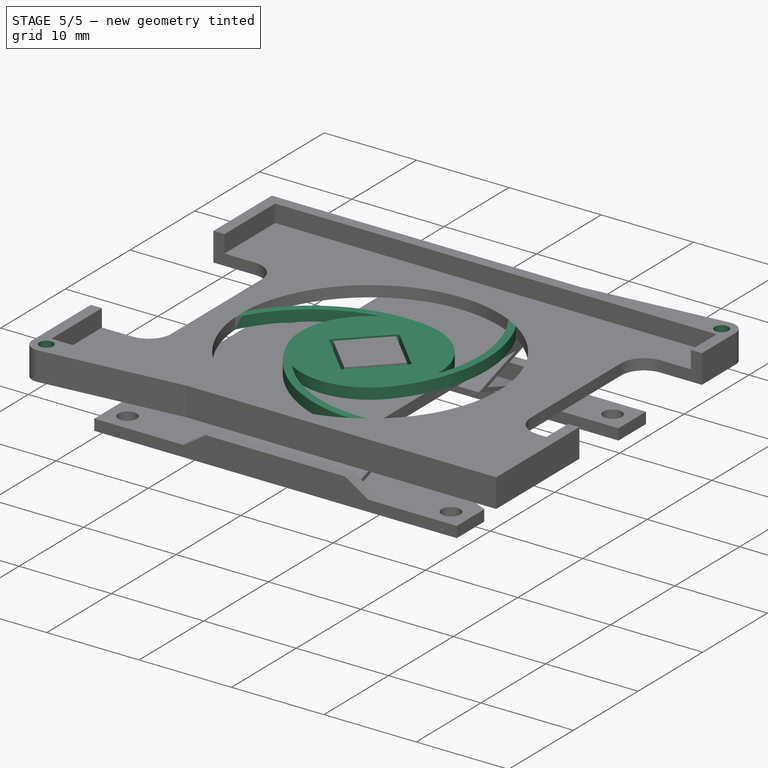
[diagram: stage 5 of 5 — iso view after this stage's code; geometry added in this stage tinted green]
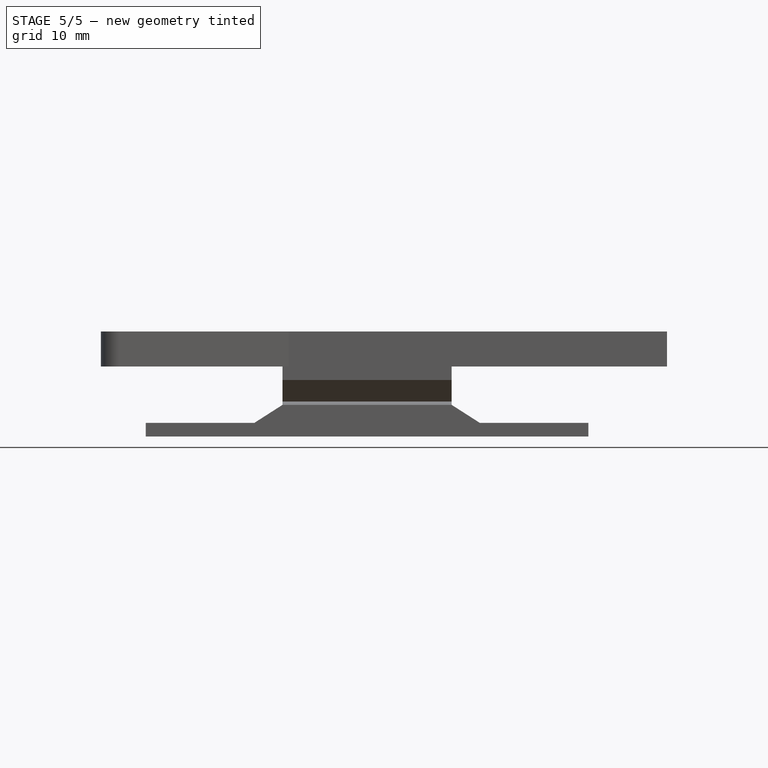
[diagram: stage 5 of 5 — front view after this stage's code; geometry added in this stage tinted green]
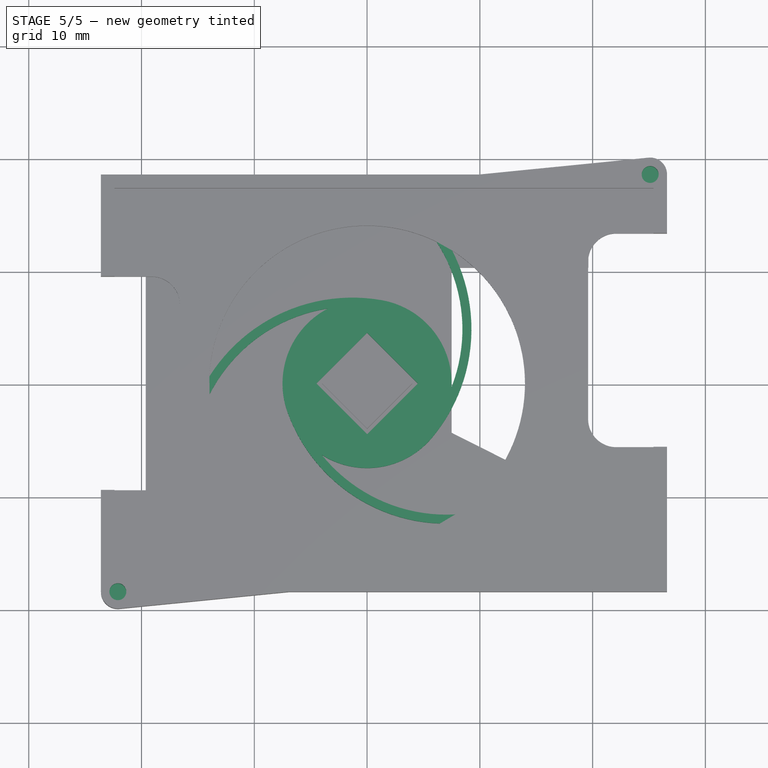
[diagram: stage 5 of 5 — top view after this stage's code; geometry added in this stage tinted green]
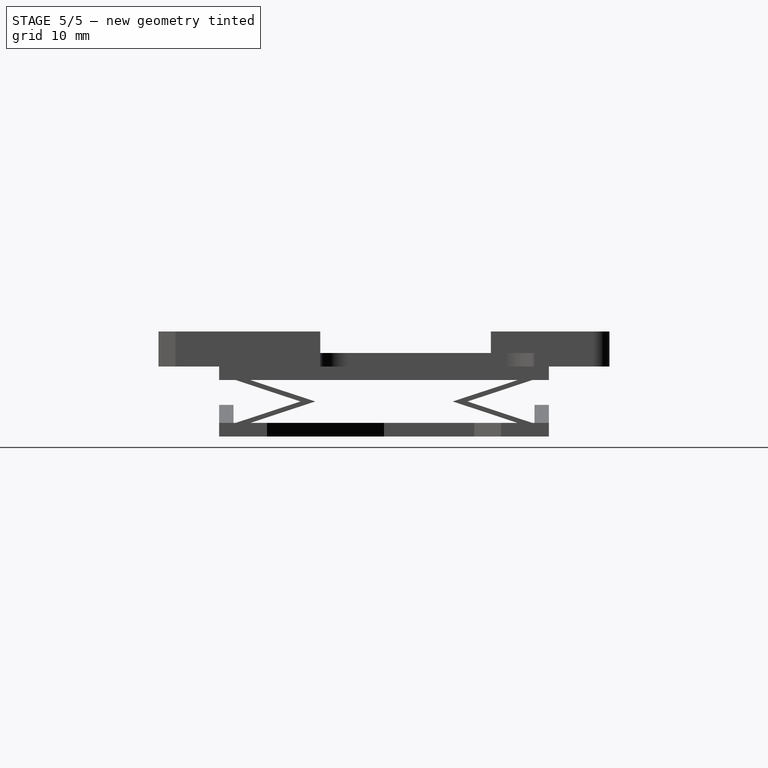
[diagram: stage 5 of 5 — right view after this stage's code; geometry added in this stage tinted green]
FEATURE [PartDesign::Pad] Pad008
  BaseFeature = -> Pocket002
  Direction = (0,0,1)
  Length = 1.2
  Length2 = 10
  Placement = pos=(0,0,5) rot=(0,0,1;0rad)
  Profile = -> Sketch010
  ReferenceAxis = -> Sketch010 [N_Axis]
  Refine = true
  Type = 0
FEATURE [Sketcher::SketchObject] Sketch011
  FullyConstrained = true
  MapMode = 5
  Placement = pos=(0,0,5) rot=(0,0,1;0rad)
  Support = -> [DatumPlane002]
  sketch-geometry (5):
    g0: LineSegment StartX=4.5 StartY=0 StartZ=0 EndX=2.48859e-11 EndY=4.5 EndZ=0
    g1: LineSegment StartX=2.48861e-11 StartY=4.5 StartZ=0 EndX=-4.5 EndY=-3.082e-13 EndZ=0
    g2: LineSegment StartX=-4.5 StartY=-3.082e-13 StartZ=0 EndX=-2.45777e-11 EndY=-4.5 EndZ=0
    g3: LineSegment StartX=-2.45777e-11 StartY=-4.5 StartZ=0 EndX=4.5 EndY=0 EndZ=0
    g4: Circle CenterX=0 CenterY=1e-16 CenterZ=0 NormalX=0 NormalY=0 NormalZ=1 AngleXU=0 Radius=4.5
  constraints (14):
    c: Coincident(g0,g1)
    c: Coincident(g1,g2)
    c: Coincident(g2,g3)
    c: Coincident(g3,g0)
    c: Equal(g0,g1)
    c: Equal(g0,g2)
    c: Equal(g0,g3)
    c: PointOnObject(g0,g4)
    c: PointOnObject(g1,g4)
    c: PointOnObject(g2,g4)
    c: PointOnObject(g3,g4)
    c: Coincident(g4,g-1)
    c: PointOnObject(g3,g-1)
    c: Diameter(g4) = 9
FEATURE [PartDesign::Pocket] Pocket003
  BaseFeature = -> Pad008
  Direction = (0,0,-1)
  Length = 5
  Length2 = 5
  Placement = pos=(0,0,5) rot=(0,0,1;0rad)
  Profile = -> Sketch011
  ReferenceAxis = -> Sketch011 [N_Axis]
  Reversed = true
  Type = 0
FEATURE [PartDesign::Plane] DatumPlane
  AttachmentOffset = pos=(0,0,8.1) rot=(0,0,1;0rad)
  Length = 61.7587
  MapMode = 5
  Placement = pos=(0,0,8.1) rot=(0,0,1;0rad)
  ResizeMode = 0
  Support = -> [XY_Plane001]
  Width = 60.1587
FEATURE [Sketcher::SketchObject] Sketch013
  FullyConstrained = true
  MapMode = 5
  Placement = pos=(0,0,8.1) rot=(0,0,1;0rad)
  Support = -> [DatumPlane]
  sketch-geometry (4):
    g0: Circle CenterX=25.1 CenterY=18.5 CenterZ=0 NormalX=0 NormalY=0 NormalZ=1 AngleXU=0 Radius=0.75
    g1: Circle CenterX=-22.1 CenterY=-18.5 CenterZ=0 NormalX=0 NormalY=0 NormalZ=1 AngleXU=0 Radius=0.75
    g2: LineSegment StartX=-22.1 StartY=-18.5 StartZ=0 EndX=-22.1 EndY=0 EndZ=0
    g3: LineSegment StartX=25.1 StartY=18.5 StartZ=0 EndX=25.1 EndY=0 EndZ=0
  constraints (12):
    c: Diameter(g0) = 1.5
    c: Equal(g1,g0)
    c: Coincident(g2,g1)
    c: PointOnObject(g2,g-1)
    c: Vertical(g2)
    c: Coincident(g3,g0)
    c: PointOnObject(g3,g-1)
    c: Vertical(g3)
    c: Equal(g2,g3)
    c: DistanceY(g3,g3) = 18.5
    c: DistanceX(g-1,g3) = 25.1
    c: DistanceX(g2,g-1) = 22.1
FEATURE [PartDesign::Pocket] Pocket
  BaseFeature = -> Pocket003
  Direction = (0,0,-1)
  Length = 2
  Length2 = 5
  Placement = pos=(0,0,5) rot=(0,0,1;0rad)
  Profile = -> Sketch013
  ReferenceAxis = -> Sketch013 [N_Axis]
  Type = 0
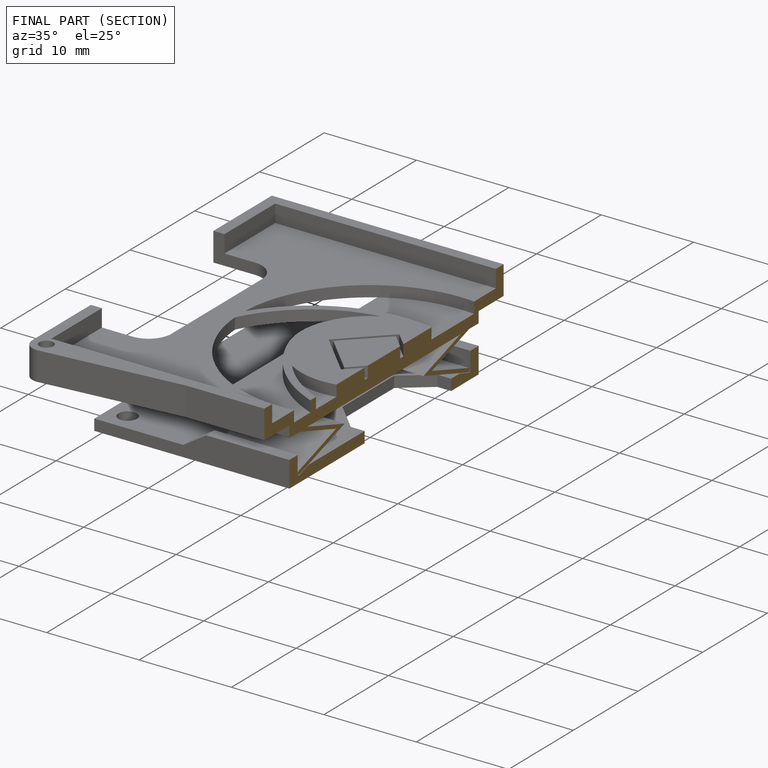
[diagram: finished part — half-section view (interior)]
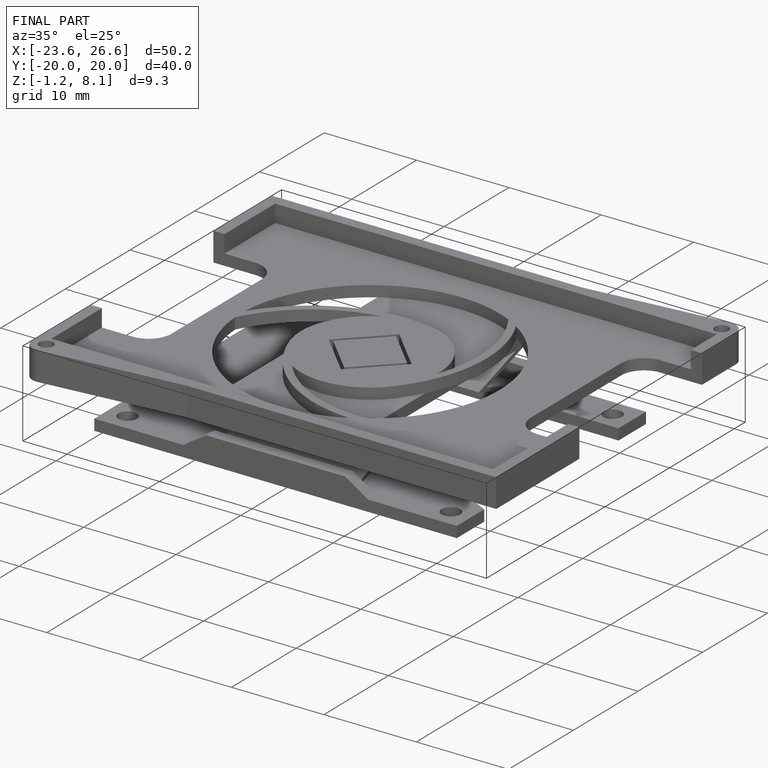
[diagram: finished part — iso view with bounding-box wireframe]
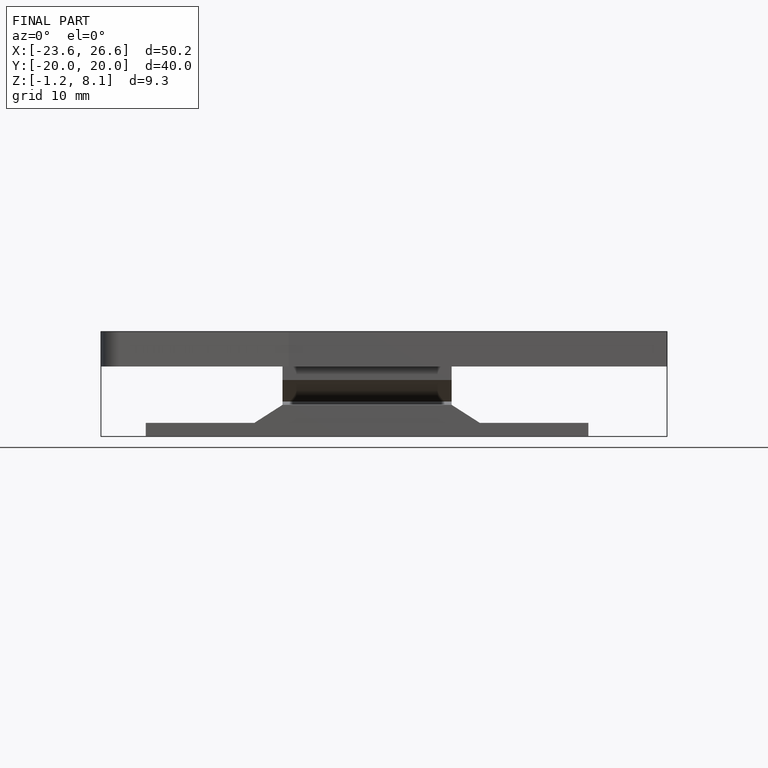
[diagram: finished part — front view with bounding-box wireframe]
